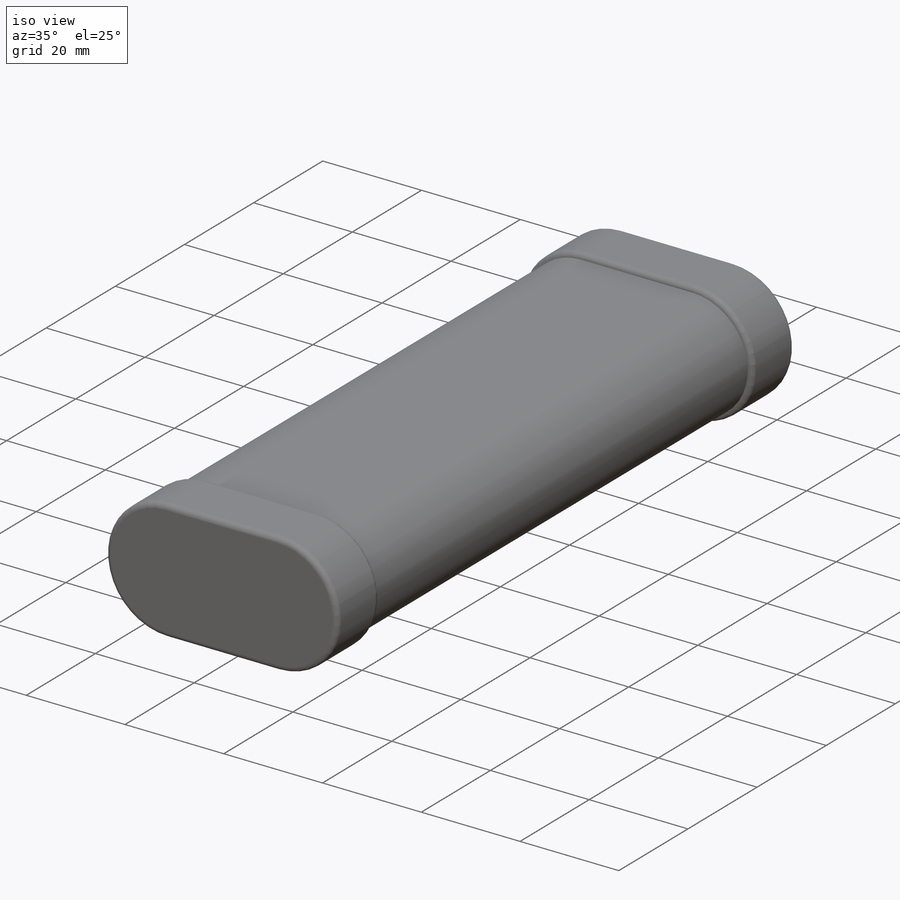
[diagram: iso view]
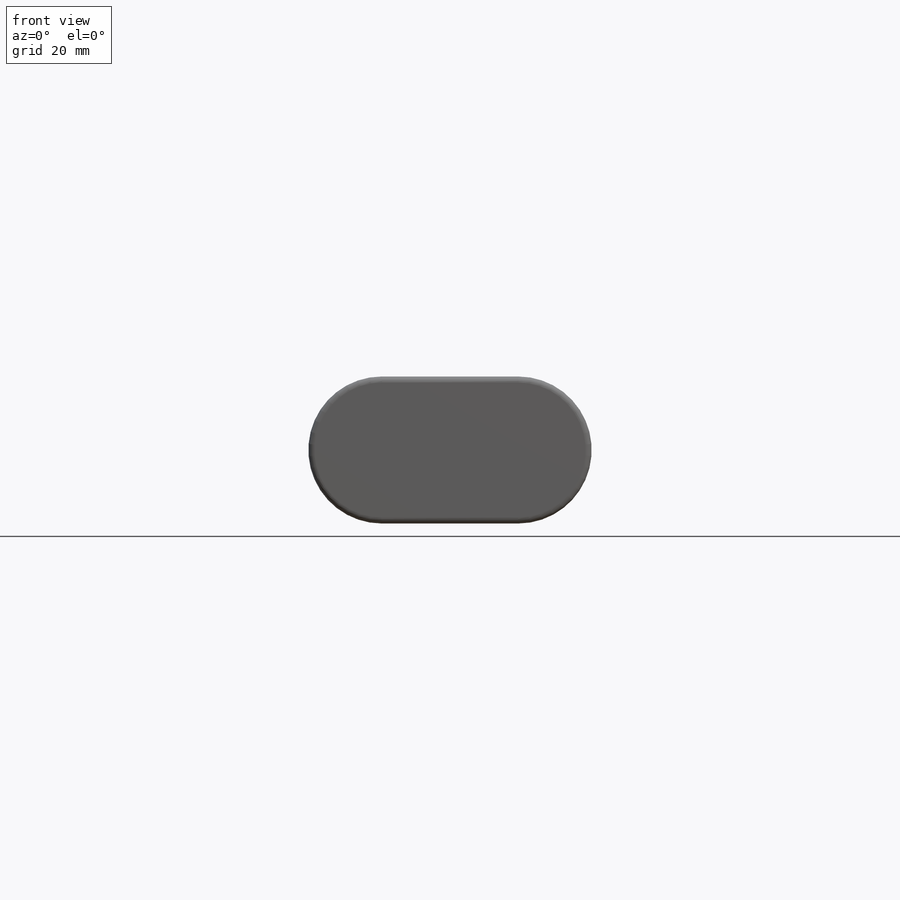
[diagram: front view]
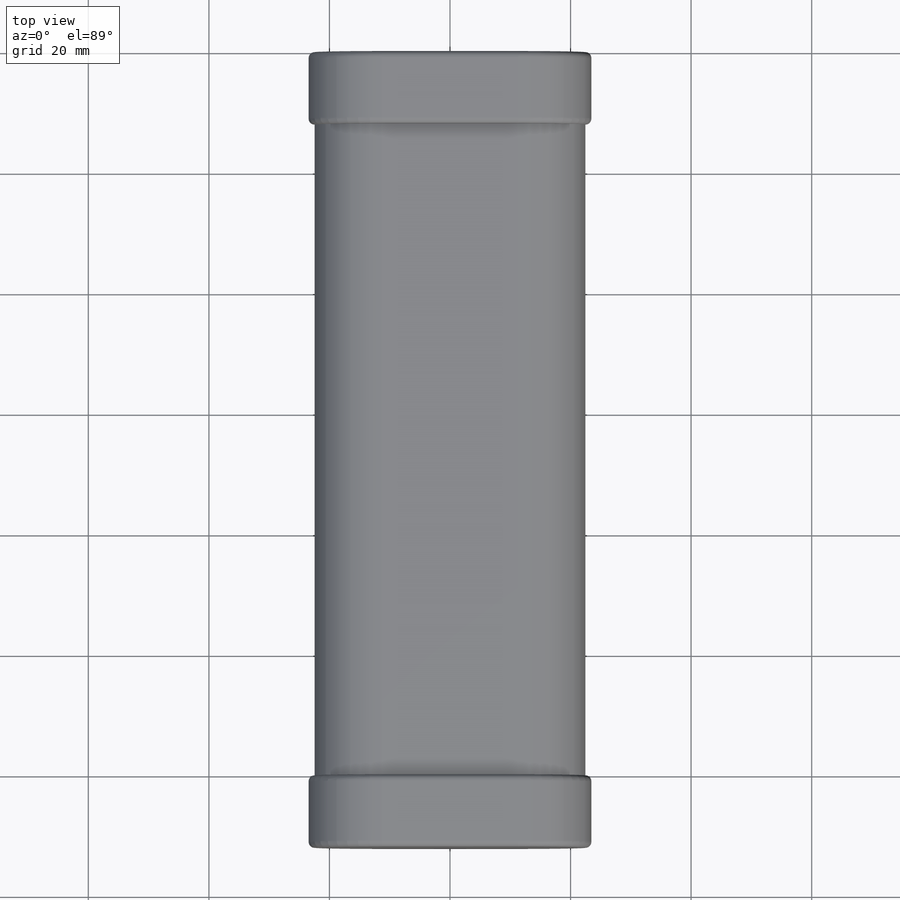
[diagram: top view]
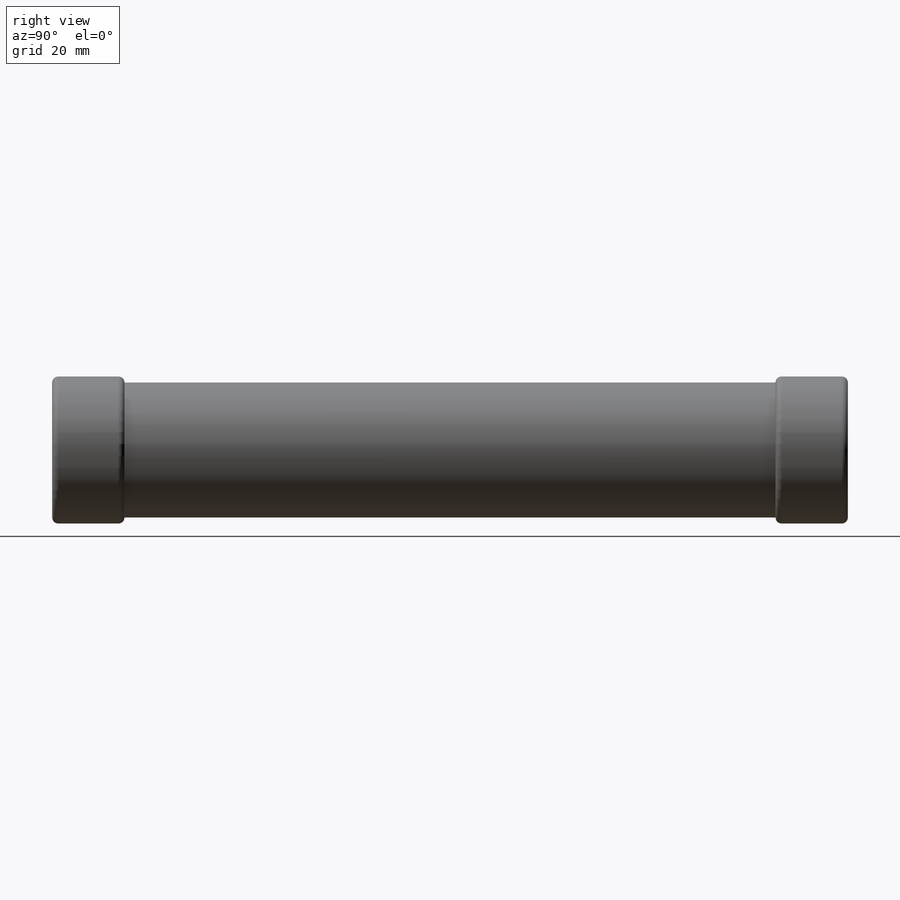
[diagram: right view]
SOLIDWORKS PART (.sldprt)
format: sldprt  version: not decoded by parser v0  size: 255,488 bytes
history: native  units: mm
features: plane x4, sketch x2, material x1, extrude x1, cut_extrude x1, fillet x1 (+10 scaffold rows collapsed)
feature tree (20):
  scaffold x10  (default folders/planes/origin — collapsed)
  material  "材质 <未指定>"
  plane  "前视基准面"
  plane  "上视基准面"
  plane  "右视基准面"
  sketch  "草图1"  dims[D1=24.4mm D2=24.4mm D3=47.0mm D4=22.6mm]
  extrude  "凸台-拉伸1"  Depth=132mm
  plane  "基准面1"  Offset=12mm
  sketch  "草图2"  dims[D3=22.6mm D1=0.0mm D2=1.0mm]
  cut_extrude  "切除-拉伸1"  Depth=108mm
  fillet  "圆角1"  Radius=1mm
decode coverage: 5 of 5 modeling features carry decoded parameters
note: suppression state not decoded; provenance and decode notes live in map.json
